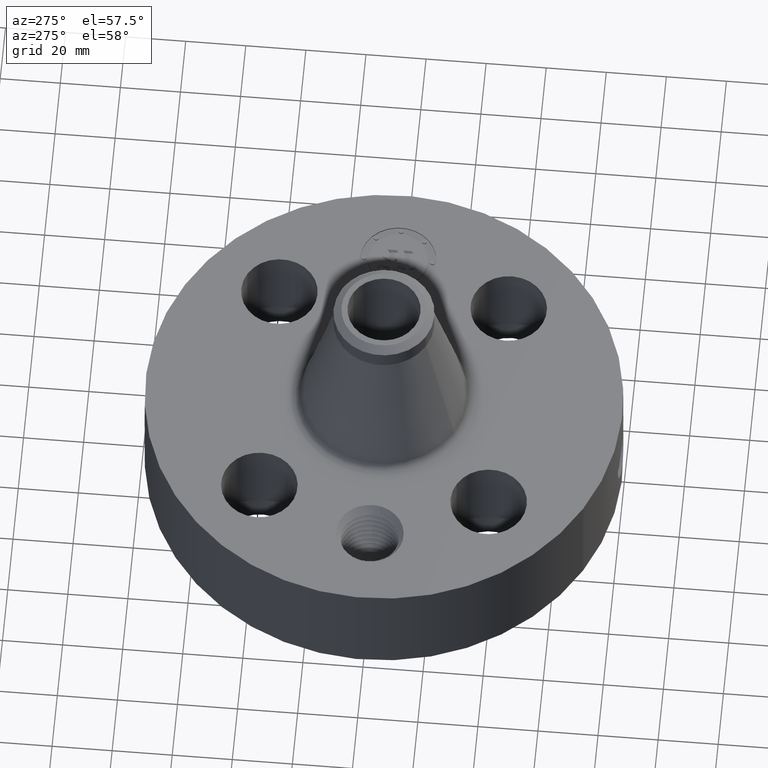
[diagram: clean part render]
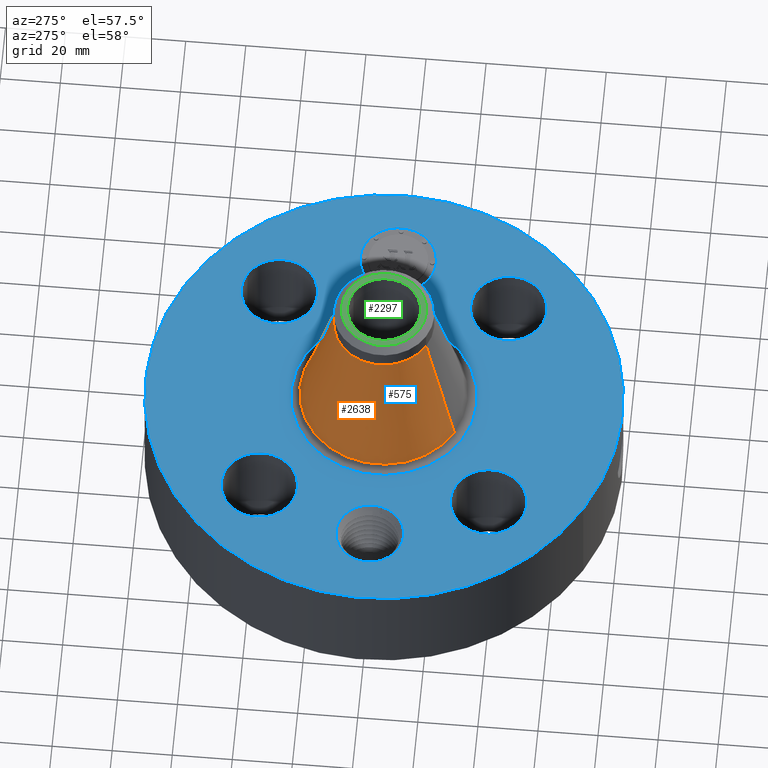
[diagram: same view with three faces highlighted in distinct colors, each labeled with its STEP entity id]
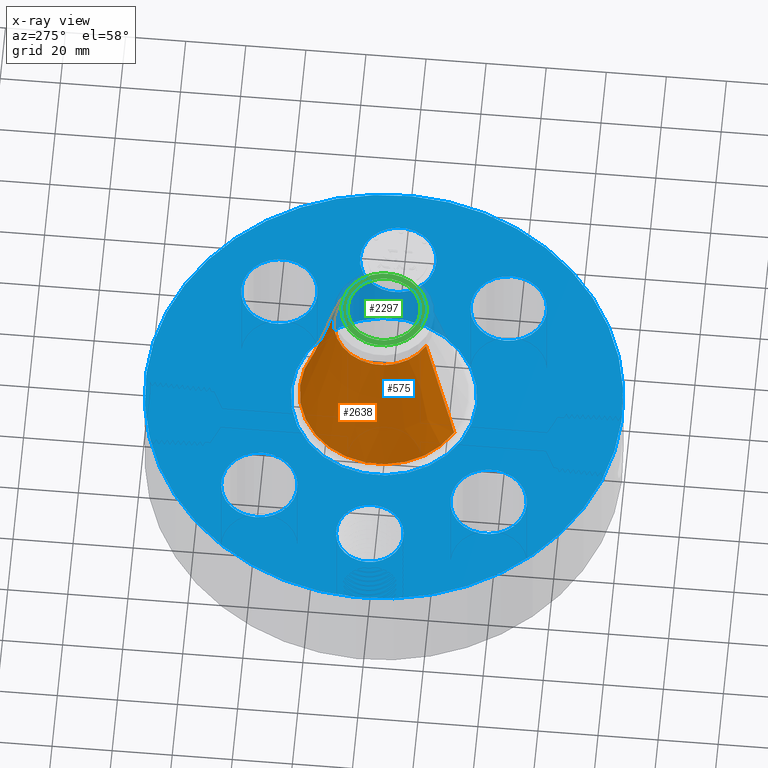
[diagram: x-ray of the same camera — body ghosted, the three highlighted faces saturated]
A machine part, auxiliary view with three faces highlighted in distinct colors.
The next image is the same camera in x-ray (body ghosted, the three faces saturated) — at least one of them is partly hidden behind the body in this view.
Their STEP definitions:

[orange] entity #2638 — the highlighted conical surface has half-angle 14.447 deg.
#1945=AXIS2_PLACEMENT_3D('Circle Axis2P3D',#1943,#1944,$) ;
#2599=AXIS2_PLACEMENT_3D('Cone Axis2P3D',#2596,#2597,#2598) ;
#2629=AXIS2_PLACEMENT_3D('Circle Axis2P3D',#2627,#2628,$) ;
#1921=CARTESIAN_POINT('Vertex',(0.528229843363,0.966918242518,1.84006221555)) ;
#1928=CARTESIAN_POINT('Vertex',(-0.528229843363,-0.966918242518,1.84006221555)) ;
#1943=CARTESIAN_POINT('Axis2P3D Location',(0.,0.,1.84006221555)) ;
#2596=CARTESIAN_POINT('Axis2P3D Location',(0.,0.,3.55492912713)) ;
#2601=CARTESIAN_POINT('Line Origine',(0.422325349421,0.773061366684,2.69749567134)) ;
#2605=CARTESIAN_POINT('Vertex',(0.31642085548,0.57920449085,3.55492912713)) ;
#2612=CARTESIAN_POINT('Vertex',(-0.31642085548,-0.57920449085,3.55492912713)) ;
#2615=CARTESIAN_POINT('Line Origine',(-0.422325349421,-0.773061366684,2.69749567134)) ;
#2627=CARTESIAN_POINT('Axis2P3D Location',(0.,0.,3.55492912713)) ;
#1944=DIRECTION('Axis2P3D Direction',(0.,0.,-0.0393700787402)) ;
#2597=DIRECTION('Axis2P3D Direction',(0.,0.,-0.0393700787402)) ;
#2598=DIRECTION('Axis2P3D XDirection',(-0.0188750212049,-0.0345504945626,0.)) ;
#2602=DIRECTION('Vector Direction',(0.00470896930408,0.00861971049304,-0.0381251793322)) ;
#2616=DIRECTION('Vector Direction',(-0.00470896930408,-0.00861971049304,-0.0381251793322)) ;
#2628=DIRECTION('Axis2P3D Direction',(0.,0.,-0.0393700787402)) ;
#2603=VECTOR('Line Direction',#2602,0.0393700787402) ;
#2617=VECTOR('Line Direction',#2616,0.0393700787402) ;
#2633=ORIENTED_EDGE('',*,*,#1947,.F.) ;
#2634=ORIENTED_EDGE('',*,*,#2619,.T.) ;
#2635=ORIENTED_EDGE('',*,*,#2631,.T.) ;
#2636=ORIENTED_EDGE('',*,*,#2607,.F.) ;
#2638=ADVANCED_FACE('PartBody',(#2637),#2600,.T.) ;
#1946=CIRCLE('generated circle',#1945,1.10179746557) ;
#2630=CIRCLE('generated circle',#2629,0.660000000003) ;
#2600=CONICAL_SURFACE('Cone',#2599,0.660000000003,0.252144826006) ;
#1947=EDGE_CURVE('',#1929,#1922,#1946,.T.) ;
#2607=EDGE_CURVE('',#1922,#2606,#2604,.F.) ;
#2619=EDGE_CURVE('',#1929,#2613,#2618,.F.) ;
#2631=EDGE_CURVE('',#2613,#2606,#2630,.T.) ;
#2632=EDGE_LOOP('',(#2633,#2634,#2635,#2636)) ;
#2637=FACE_OUTER_BOUND('',#2632,.T.) ;
#2604=LINE('Line',#2601,#2603) ;
#2618=LINE('Line',#2615,#2617) ;
#1922=VERTEX_POINT('',#1921) ;
#1929=VERTEX_POINT('',#1928) ;
#2606=VERTEX_POINT('',#2605) ;
#2613=VERTEX_POINT('',#2612) ;

[blue] entity #575 — the highlighted planar face has unit normal (0, 0, -1).
#58=AXIS2_PLACEMENT_3D('Circle Axis2P3D',#56,#57,$) ;
#315=AXIS2_PLACEMENT_3D('Circle Axis2P3D',#313,#314,$) ;
#443=AXIS2_PLACEMENT_3D('Plane Axis2P3D',#440,#441,#442) ;
#451=AXIS2_PLACEMENT_3D('Circle Axis2P3D',#449,#450,$) ;
#460=AXIS2_PLACEMENT_3D('Circle Axis2P3D',#458,#459,$) ;
#469=AXIS2_PLACEMENT_3D('Circle Axis2P3D',#467,#468,$) ;
#478=AXIS2_PLACEMENT_3D('Circle Axis2P3D',#476,#477,$) ;
#487=AXIS2_PLACEMENT_3D('Circle Axis2P3D',#485,#486,$) ;
#496=AXIS2_PLACEMENT_3D('Circle Axis2P3D',#494,#495,$) ;
#505=AXIS2_PLACEMENT_3D('Circle Axis2P3D',#503,#504,$) ;
#514=AXIS2_PLACEMENT_3D('Circle Axis2P3D',#512,#513,$) ;
#523=AXIS2_PLACEMENT_3D('Circle Axis2P3D',#521,#522,$) ;
#532=AXIS2_PLACEMENT_3D('Circle Axis2P3D',#530,#531,$) ;
#541=AXIS2_PLACEMENT_3D('Circle Axis2P3D',#539,#540,$) ;
#550=AXIS2_PLACEMENT_3D('Circle Axis2P3D',#548,#549,$) ;
#559=AXIS2_PLACEMENT_3D('Circle Axis2P3D',#557,#558,$) ;
#568=AXIS2_PLACEMENT_3D('Circle Axis2P3D',#566,#567,$) ;
#53=CARTESIAN_POINT('Vertex',(-1.49820480814,-2.74244550592,1.75000000001)) ;
#56=CARTESIAN_POINT('Axis2P3D Location',(0.,0.,1.75000000001)) ;
#60=CARTESIAN_POINT('Vertex',(1.49820480814,2.74244550592,1.75000000001)) ;
#313=CARTESIAN_POINT('Axis2P3D Location',(0.,0.,1.75000000001)) ;
#440=CARTESIAN_POINT('Axis2P3D Location',(0.,3.12500000001,1.75000000001)) ;
#449=CARTESIAN_POINT('Axis2P3D Location',(-2.12500000001,-5.59482469102E-016,1.75000000001)) ;
#453=CARTESIAN_POINT('Vertex',(-2.51359355842,0.212289628495,1.75000000001)) ;
#455=CARTESIAN_POINT('Vertex',(-1.7364064416,-0.212289628495,1.75000000001)) ;
#458=CARTESIAN_POINT('Axis2P3D Location',(-2.12500000001,-5.59482469102E-016,1.75000000001)) ;
#467=CARTESIAN_POINT('Axis2P3D Location',(1.50260191003,-1.50260191003,1.75000000001)) ;
#471=CARTESIAN_POINT('Vertex',(1.06381062908,-1.26288914072,1.75000000001)) ;
#473=CARTESIAN_POINT('Vertex',(1.94139319097,-1.74231467933,1.75000000001)) ;
#476=CARTESIAN_POINT('Axis2P3D Location',(1.50260191003,-1.50260191003,1.75000000001)) ;
#485=CARTESIAN_POINT('Axis2P3D Location',(0.,0.,1.75000000001)) ;
#489=CARTESIAN_POINT('Vertex',(-0.583941750133,-1.06889820381,1.75000000001)) ;
#491=CARTESIAN_POINT('Vertex',(0.583941750133,1.06889820381,1.75000000001)) ;
#494=CARTESIAN_POINT('Axis2P3D Location',(0.,0.,1.75000000001)) ;
#503=CARTESIAN_POINT('Axis2P3D Location',(-1.50260191003,-1.50260191003,1.75000000001)) ;
#507=CARTESIAN_POINT('Vertex',(-1.74231467933,-1.94139319097,1.75000000001)) ;
#509=CARTESIAN_POINT('Vertex',(-1.26288914072,-1.06381062908,1.75000000001)) ;
#512=CARTESIAN_POINT('Axis2P3D Location',(-1.50260191003,-1.50260191003,1.75000000001)) ;
#521=CARTESIAN_POINT('Axis2P3D Location',(-1.50260191003,1.50260191003,1.75000000001)) ;
#525=CARTESIAN_POINT('Vertex',(-1.94139319097,1.74231467933,1.75000000001)) ;
#527=CARTESIAN_POINT('Vertex',(-1.06381062908,1.26288914072,1.75000000001)) ;
#530=CARTESIAN_POINT('Axis2P3D Location',(-1.50260191003,1.50260191003,1.75000000001)) ;
#539=CARTESIAN_POINT('Axis2P3D Location',(1.50260191003,1.50260191003,1.75000000001)) ;
#543=CARTESIAN_POINT('Vertex',(1.74231467933,1.94139319097,1.75000000001)) ;
#545=CARTESIAN_POINT('Vertex',(1.26288914072,1.06381062908,1.75000000001)) ;
#548=CARTESIAN_POINT('Axis2P3D Location',(1.50260191003,1.50260191003,1.75000000001)) ;
#557=CARTESIAN_POINT('Axis2P3D Location',(2.12500000001,-5.59482469102E-015,1.75000000001)) ;
#561=CARTESIAN_POINT('Vertex',(2.12500000001,0.499999995002,1.75000000001)) ;
#563=CARTESIAN_POINT('Vertex',(2.12500000001,-0.499999995002,1.75000000001)) ;
#566=CARTESIAN_POINT('Axis2P3D Location',(2.12500000001,-5.59482469102E-015,1.75000000001)) ;
#57=DIRECTION('Axis2P3D Direction',(0.,0.,-0.0393700787402)) ;
#314=DIRECTION('Axis2P3D Direction',(0.,0.,-0.0393700787402)) ;
#441=DIRECTION('Axis2P3D Direction',(0.,0.,-0.0393700787402)) ;
#442=DIRECTION('Axis2P3D XDirection',(0.0393700787402,0.,0.)) ;
#450=DIRECTION('Axis2P3D Direction',(0.,0.,-0.0393700787402)) ;
#459=DIRECTION('Axis2P3D Direction',(0.,0.,-0.0393700787402)) ;
#468=DIRECTION('Axis2P3D Direction',(0.,0.,-0.0393700787402)) ;
#477=DIRECTION('Axis2P3D Direction',(0.,0.,-0.0393700787402)) ;
#486=DIRECTION('Axis2P3D Direction',(0.,0.,-0.0393700787402)) ;
#495=DIRECTION('Axis2P3D Direction',(0.,0.,-0.0393700787402)) ;
#504=DIRECTION('Axis2P3D Direction',(0.,0.,-0.0393700787402)) ;
#513=DIRECTION('Axis2P3D Direction',(0.,0.,-0.0393700787402)) ;
#522=DIRECTION('Axis2P3D Direction',(0.,0.,-0.0393700787402)) ;
#531=DIRECTION('Axis2P3D Direction',(0.,0.,-0.0393700787402)) ;
#540=DIRECTION('Axis2P3D Direction',(0.,0.,-0.0393700787402)) ;
#549=DIRECTION('Axis2P3D Direction',(0.,0.,-0.0393700787402)) ;
#558=DIRECTION('Axis2P3D Direction',(0.,0.,-0.0393700787402)) ;
#567=DIRECTION('Axis2P3D Direction',(0.,0.,-0.0393700787402)) ;
#446=ORIENTED_EDGE('',*,*,#317,.F.) ;
#447=ORIENTED_EDGE('',*,*,#62,.F.) ;
#464=ORIENTED_EDGE('',*,*,#457,.T.) ;
#465=ORIENTED_EDGE('',*,*,#462,.T.) ;
#482=ORIENTED_EDGE('',*,*,#475,.T.) ;
#483=ORIENTED_EDGE('',*,*,#480,.T.) ;
#500=ORIENTED_EDGE('',*,*,#493,.T.) ;
#501=ORIENTED_EDGE('',*,*,#498,.T.) ;
#518=ORIENTED_EDGE('',*,*,#511,.T.) ;
#519=ORIENTED_EDGE('',*,*,#516,.T.) ;
#536=ORIENTED_EDGE('',*,*,#529,.T.) ;
#537=ORIENTED_EDGE('',*,*,#534,.T.) ;
#554=ORIENTED_EDGE('',*,*,#547,.T.) ;
#555=ORIENTED_EDGE('',*,*,#552,.T.) ;
#572=ORIENTED_EDGE('',*,*,#565,.T.) ;
#573=ORIENTED_EDGE('',*,*,#570,.T.) ;
#466=FACE_BOUND('',#463,.T.) ;
#484=FACE_BOUND('',#481,.T.) ;
#502=FACE_BOUND('',#499,.T.) ;
#520=FACE_BOUND('',#517,.T.) ;
#538=FACE_BOUND('',#535,.T.) ;
#556=FACE_BOUND('',#553,.T.) ;
#574=FACE_BOUND('',#571,.T.) ;
#575=ADVANCED_FACE('PartBody',(#448,#466,#484,#502,#520,#538,#556,#574),#444,.F.) ;
#59=CIRCLE('generated circle',#58,3.12500000001) ;
#316=CIRCLE('generated circle',#315,3.12500000001) ;
#452=CIRCLE('generated circle',#451,0.442800000002) ;
#461=CIRCLE('generated circle',#460,0.442800000002) ;
#470=CIRCLE('generated circle',#469,0.500000000002) ;
#479=CIRCLE('generated circle',#478,0.500000000002) ;
#488=CIRCLE('generated circle',#487,1.21800301217) ;
#497=CIRCLE('generated circle',#496,1.21800301217) ;
#506=CIRCLE('generated circle',#505,0.500000000002) ;
#515=CIRCLE('generated circle',#514,0.500000000002) ;
#524=CIRCLE('generated circle',#523,0.500000000002) ;
#533=CIRCLE('generated circle',#532,0.500000000002) ;
#542=CIRCLE('generated circle',#541,0.500000000002) ;
#551=CIRCLE('generated circle',#550,0.500000000002) ;
#560=CIRCLE('generated circle',#559,0.499999995002) ;
#569=CIRCLE('generated circle',#568,0.499999995002) ;
#62=EDGE_CURVE('',#54,#61,#59,.T.) ;
#317=EDGE_CURVE('',#61,#54,#316,.T.) ;
#457=EDGE_CURVE('',#454,#456,#452,.T.) ;
#462=EDGE_CURVE('',#456,#454,#461,.T.) ;
#475=EDGE_CURVE('',#472,#474,#470,.T.) ;
#480=EDGE_CURVE('',#474,#472,#479,.T.) ;
#493=EDGE_CURVE('',#490,#492,#488,.T.) ;
#498=EDGE_CURVE('',#492,#490,#497,.T.) ;
#511=EDGE_CURVE('',#508,#510,#506,.T.) ;
#516=EDGE_CURVE('',#510,#508,#515,.T.) ;
#529=EDGE_CURVE('',#526,#528,#524,.T.) ;
#534=EDGE_CURVE('',#528,#526,#533,.T.) ;
#547=EDGE_CURVE('',#544,#546,#542,.T.) ;
#552=EDGE_CURVE('',#546,#544,#551,.T.) ;
#565=EDGE_CURVE('',#562,#564,#560,.T.) ;
#570=EDGE_CURVE('',#564,#562,#569,.T.) ;
#445=EDGE_LOOP('',(#446,#447)) ;
#463=EDGE_LOOP('',(#464,#465)) ;
#481=EDGE_LOOP('',(#482,#483)) ;
#499=EDGE_LOOP('',(#500,#501)) ;
#517=EDGE_LOOP('',(#518,#519)) ;
#535=EDGE_LOOP('',(#536,#537)) ;
#553=EDGE_LOOP('',(#554,#555)) ;
#571=EDGE_LOOP('',(#572,#573)) ;
#448=FACE_OUTER_BOUND('',#445,.T.) ;
#444=PLANE('',#443) ;
#54=VERTEX_POINT('',#53) ;
#61=VERTEX_POINT('',#60) ;
#454=VERTEX_POINT('',#453) ;
#456=VERTEX_POINT('',#455) ;
#472=VERTEX_POINT('',#471) ;
#474=VERTEX_POINT('',#473) ;
#490=VERTEX_POINT('',#489) ;
#492=VERTEX_POINT('',#491) ;
#508=VERTEX_POINT('',#507) ;
#510=VERTEX_POINT('',#509) ;
#526=VERTEX_POINT('',#525) ;
#528=VERTEX_POINT('',#527) ;
#544=VERTEX_POINT('',#543) ;
#546=VERTEX_POINT('',#545) ;
#562=VERTEX_POINT('',#561) ;
#564=VERTEX_POINT('',#563) ;

[green] entity #2297 — the highlighted planar face has unit normal (0, 0, -1).
#1150=AXIS2_PLACEMENT_3D('Circle Axis2P3D',#1148,#1149,$) ;
#1218=AXIS2_PLACEMENT_3D('Circle Axis2P3D',#1216,#1217,$) ;
#2273=AXIS2_PLACEMENT_3D('Plane Axis2P3D',#2270,#2271,#2272) ;
#2277=AXIS2_PLACEMENT_3D('Circle Axis2P3D',#2275,#2276,$) ;
#2286=AXIS2_PLACEMENT_3D('Circle Axis2P3D',#2284,#2285,$) ;
#1148=CARTESIAN_POINT('Axis2P3D Location',(0.,0.,3.87000000002)) ;
#1152=CARTESIAN_POINT('Vertex',(0.229405120223,0.419923255866,3.87000000002)) ;
#1154=CARTESIAN_POINT('Vertex',(-0.229405120223,-0.419923255866,3.87000000002)) ;
#1216=CARTESIAN_POINT('Axis2P3D Location',(0.,0.,3.87000000002)) ;
#2270=CARTESIAN_POINT('Axis2P3D Location',(0.,0.660000000003,3.87000000002)) ;
#2275=CARTESIAN_POINT('Axis2P3D Location',(0.,0.,3.87000000002)) ;
#2279=CARTESIAN_POINT('Vertex',(0.267155162633,-0.489024244991,3.87000000002)) ;
#2281=CARTESIAN_POINT('Vertex',(-0.267155162633,0.489024244991,3.87000000002)) ;
#2284=CARTESIAN_POINT('Axis2P3D Location',(0.,0.,3.87000000002)) ;
#1149=DIRECTION('Axis2P3D Direction',(0.,0.,-0.0393700787402)) ;
#1217=DIRECTION('Axis2P3D Direction',(0.,0.,-0.0393700787402)) ;
#2271=DIRECTION('Axis2P3D Direction',(0.,0.,-0.0393700787402)) ;
#2272=DIRECTION('Axis2P3D XDirection',(0.0393700787402,0.,0.)) ;
#2276=DIRECTION('Axis2P3D Direction',(0.,0.,-0.0393700787402)) ;
#2285=DIRECTION('Axis2P3D Direction',(0.,0.,-0.0393700787402)) ;
#2290=ORIENTED_EDGE('',*,*,#2283,.T.) ;
#2291=ORIENTED_EDGE('',*,*,#2288,.T.) ;
#2294=ORIENTED_EDGE('',*,*,#1220,.T.) ;
#2295=ORIENTED_EDGE('',*,*,#1156,.T.) ;
#2296=FACE_BOUND('',#2293,.T.) ;
#2297=ADVANCED_FACE('PartBody',(#2292,#2296),#2274,.F.) ;
#1151=CIRCLE('generated circle',#1150,0.478500000002) ;
#1219=CIRCLE('generated circle',#1218,0.478500000002) ;
#2278=CIRCLE('generated circle',#2277,0.557240157482) ;
#2287=CIRCLE('generated circle',#2286,0.557240157482) ;
#1156=EDGE_CURVE('',#1153,#1155,#1151,.T.) ;
#1220=EDGE_CURVE('',#1155,#1153,#1219,.T.) ;
#2283=EDGE_CURVE('',#2280,#2282,#2278,.F.) ;
#2288=EDGE_CURVE('',#2282,#2280,#2287,.F.) ;
#2289=EDGE_LOOP('',(#2290,#2291)) ;
#2293=EDGE_LOOP('',(#2294,#2295)) ;
#2292=FACE_OUTER_BOUND('',#2289,.T.) ;
#2274=PLANE('',#2273) ;
#1153=VERTEX_POINT('',#1152) ;
#1155=VERTEX_POINT('',#1154) ;
#2280=VERTEX_POINT('',#2279) ;
#2282=VERTEX_POINT('',#2281) ;